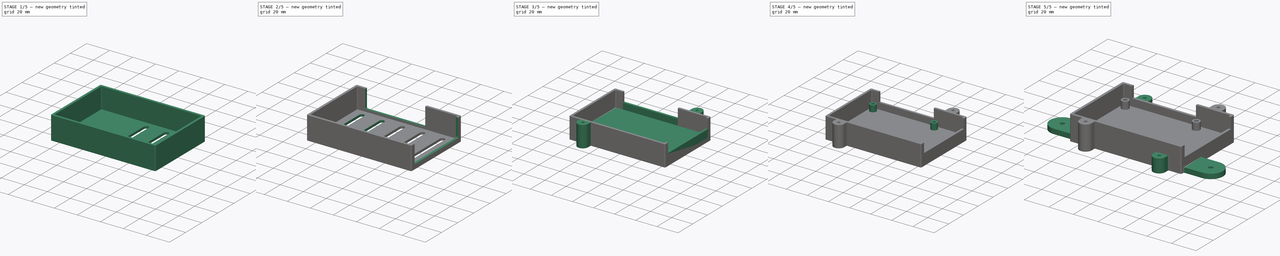
[diagram: build sequence overview — one tinted view per stage of 5, left to right]
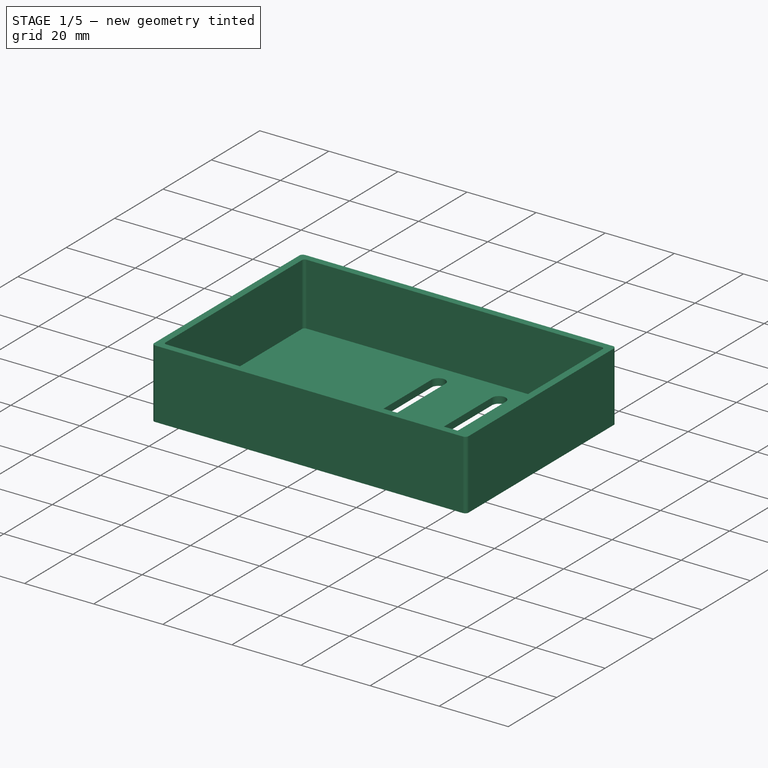
[diagram: stage 1 of 5 — iso view after this stage's code; geometry added in this stage tinted green]
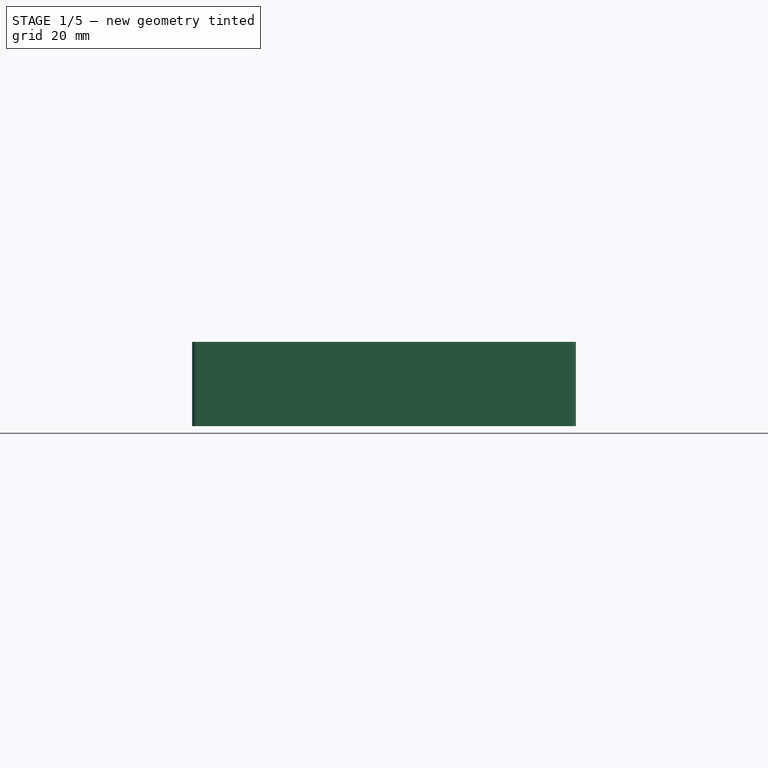
[diagram: stage 1 of 5 — front view after this stage's code; geometry added in this stage tinted green]
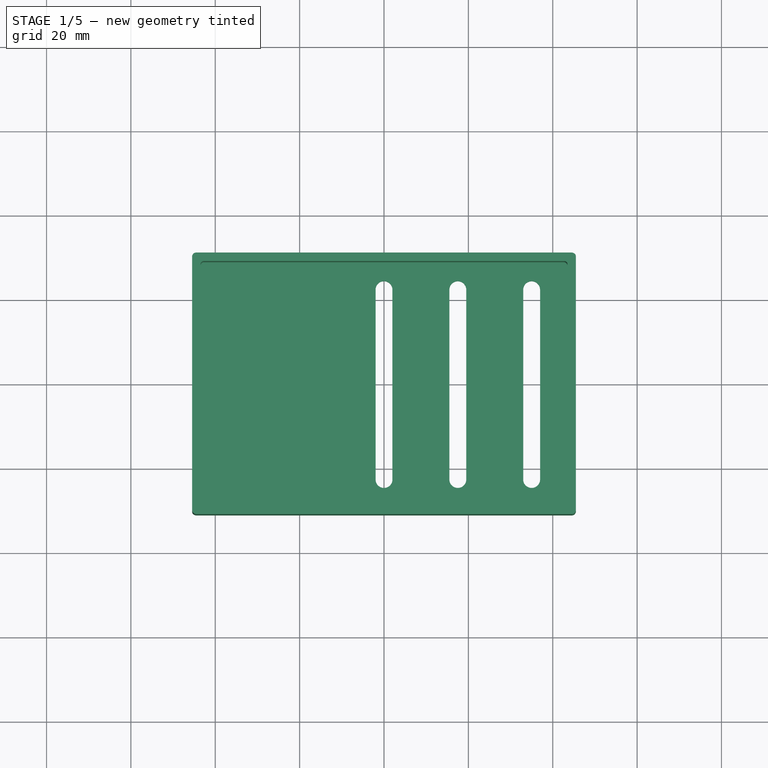
[diagram: stage 1 of 5 — top view after this stage's code; geometry added in this stage tinted green]
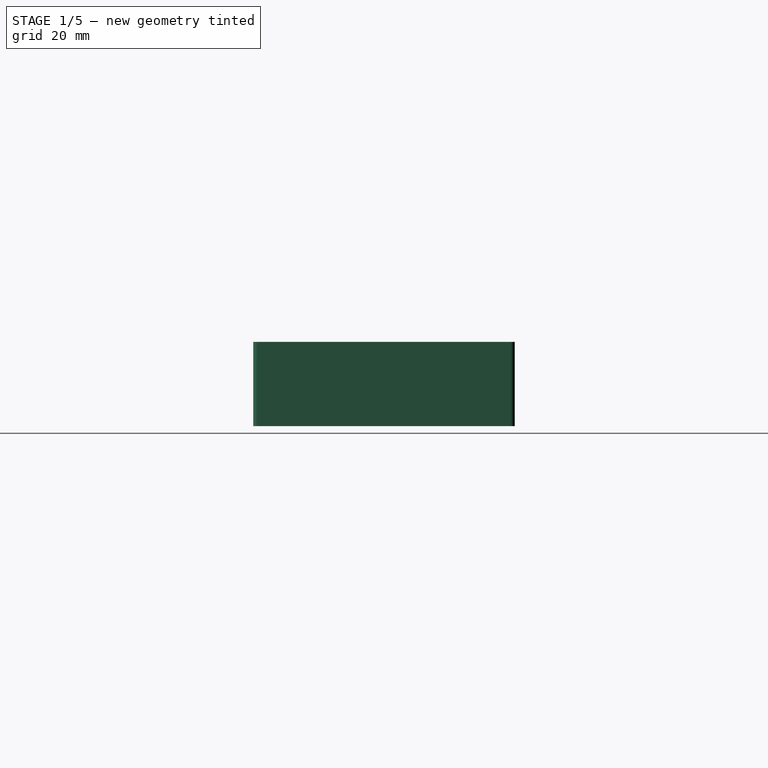
[diagram: stage 1 of 5 — right view after this stage's code; geometry added in this stage tinted green]
FCSTD DOCUMENT  (FreeCAD 0.19R22756 (Git))
Label: rpi-3b-holder
License: All rights reserved
LicenseURL: http://en.wikipedia.org/wiki/All_rights_reserved
objects: Sketcher::SketchObject×16, PartDesign::Pocket×10, PartDesign::Fillet×9, PartDesign::Pad×6, PartDesign::Body×2, PartDesign::LinearPattern×2, PartDesign::Mirrored×1
note: 71 computed .brp shape members not serialized (recipe doc carries the construction recipe); baked Part::Feature solids carry a one-line shape summary decoded from their .brp

FEATURE [PartDesign::Body] Body  label="Bottom"
  Group = -> [Sketch,Pad,Sketch001,Pocket,Fillet,Fillet001,Sketch002,Pad001,Sketch003,Pocket001,Sketch004,Pocket002,Sketch005,Pocket003,Fillet002,Sketch006,Pad002,Mirrored,Fillet003,Sketch007,Pad003,Fillet004,Sketch008,Pocket004]
  Origin = -> Origin
  Tip = -> Pocket004
FEATURE [Sketcher::SketchObject] Sketch009
  MapMode = 5
  Support = -> [XY_Plane001]
  expr: Constraints[11] = Constraints[9] / 2
  expr: Constraints[10] = Constraints[8] / 2
  sketch-geometry (4):
    g0: LineSegment StartX=-45.5 StartY=-31 StartZ=0 EndX=45.5 EndY=-31 EndZ=0
    g1: LineSegment StartX=45.5 StartY=-31 StartZ=0 EndX=45.5 EndY=31 EndZ=0
    g2: LineSegment StartX=45.5 StartY=31 StartZ=0 EndX=-45.5 EndY=31 EndZ=0
    g3: LineSegment StartX=-45.5 StartY=31 StartZ=0 EndX=-45.5 EndY=-31 EndZ=0
  constraints (12):
    c: Coincident(g0,g1)
    c: Coincident(g1,g2)
    c: Coincident(g2,g3)
    c: Coincident(g3,g0)
    c: Horizontal(g0)
    c: Horizontal(g2)
    c: Vertical(g1)
    c: Vertical(g3)
    c: Distance(g2) = 91
    c: Distance(g1) = 62
    c: Distance(g2,g-2) = 45.5
    c: Distance(g1,g-1) = 31
FEATURE [PartDesign::Pad] Pad004
  Direction = (1,1,1)
  Length = 20
  Length2 = 100
  Profile = -> Sketch009
  Type = 0
FEATURE [Sketcher::SketchObject] Sketch010
  ExternalGeometry = -> [Pad004]
  MapMode = 5
  Placement = pos=(0,0,20) rot=(0,0,1;0rad)
  Support = -> [Pad004]
  expr: Constraints[11] = Constraints[8]
  expr: Constraints[10] = Constraints[8]
  expr: Constraints[9] = Constraints[8]
  sketch-geometry (4):
    g0: LineSegment StartX=-43.5 StartY=-29 StartZ=0 EndX=43.5 EndY=-29 EndZ=0
    g1: LineSegment StartX=43.5 StartY=-29 StartZ=0 EndX=43.5 EndY=29 EndZ=0
    g2: LineSegment StartX=43.5 StartY=29 StartZ=0 EndX=-43.5 EndY=29 EndZ=0
    g3: LineSegment StartX=-43.5 StartY=29 StartZ=0 EndX=-43.5 EndY=-29 EndZ=0
  constraints (12):
    c: Coincident(g0,g1)
    c: Coincident(g1,g2)
    c: Coincident(g2,g3)
    c: Coincident(g3,g0)
    c: Horizontal(g0)
    c: Horizontal(g2)
    c: Vertical(g1)
    c: Vertical(g3)
    c: Distance(g2,g-3) = 2
    c: Distance(g0,g-4) = 2
    c: Distance(g0,g-5) = 2
    c: Distance(g0,g-6) = 2
FEATURE [PartDesign::Pocket] Pocket005
  BaseFeature = -> Pad004
  Length = 0
  Length2 = 100
  Offset = -2
  Profile = -> Sketch010
  Type = 3
  UpToFace = -> Pad004 [Face5]
FEATURE [PartDesign::Fillet] Fillet005
  Base = -> Pocket005 [Edge1,Edge5,Edge8,Edge2]
  BaseFeature = -> Pocket005
  Radius = 1
  SupportTransform = false
FEATURE [PartDesign::Fillet] Fillet006
  Base = -> Fillet005 [Edge34,Edge31,Edge29,Edge32]
  BaseFeature = -> Fillet005
  Radius = 0.8
  SupportTransform = false
FEATURE [Sketcher::SketchObject] Sketch011
  MapMode = 5
  Placement = pos=(0,0,2) rot=(0,0,1;0rad)
  Support = -> [Fillet006]
  expr: Constraints[10] = Constraints[9] / 2
  sketch-geometry (4):
    g0: LineSegment StartX=-2 StartY=22.5 StartZ=0 EndX=-2 EndY=-22.5 EndZ=0
    g1: LineSegment StartX=2 StartY=22.5 StartZ=0 EndX=2 EndY=-22.5 EndZ=0
    g2: ArcOfCircle CenterX=0 CenterY=22.5 CenterZ=0 NormalX=0 NormalY=0 NormalZ=1 AngleXU=0 Radius=2 StartAngle=-2.967e-13 EndAngle=3.14159
    g3: ArcOfCircle CenterX=2e-16 CenterY=-22.5 CenterZ=0 NormalX=0 NormalY=0 NormalZ=1 AngleXU=0 Radius=2 StartAngle=3.14159 EndAngle=6.28319
  constraints (12):
    c: Vertical(g0)
    c: Vertical(g1)
    c: Horizontal(g0,g1)
    c: Horizontal(g0,g1)
    c: Coincident(g2,g1)
    c: Coincident(g3,g1)
    c: Tangent(g2,g0) = -1.5708
    c: Tangent(g3,g0) = -1.5708
    c: PointOnObject(g2,g-2)
    c: Distance(g1) = 45
    c: DistanceY(g-1,g1) = 22.5
    c: Radius(g2) = 2
FEATURE [PartDesign::Pocket] Pocket006
  BaseFeature = -> Fillet006
  Length = 5
  Length2 = 100
  Profile = -> Sketch011
  Type = 1
FEATURE [PartDesign::LinearPattern] LinearPattern
  BaseFeature = -> Pocket006
  Direction = -> Sketch011 [H_Axis]
  Length = 35
  Occurrences = 3
  Originals = -> [Pocket006]
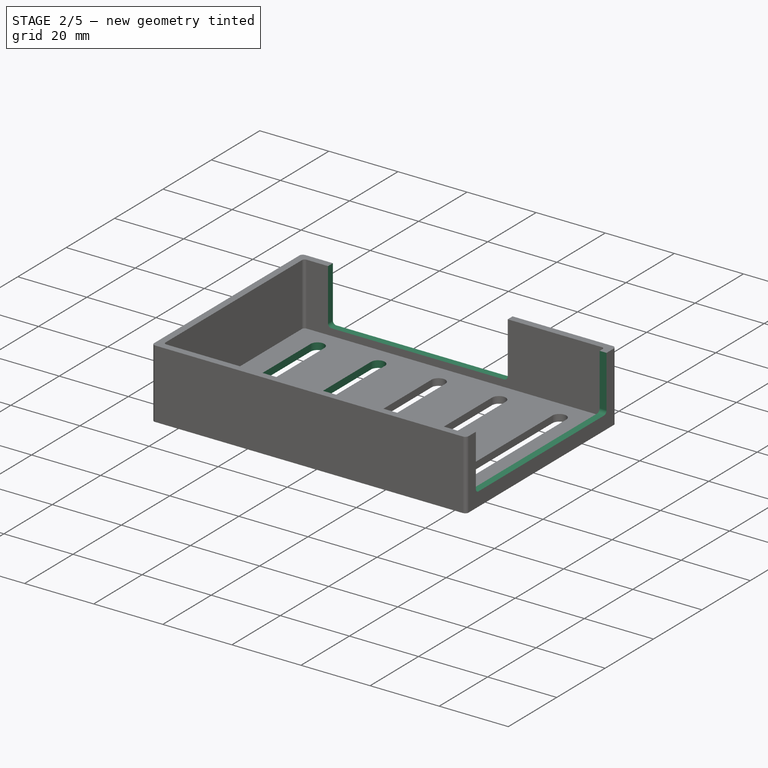
[diagram: stage 2 of 5 — iso view after this stage's code; geometry added in this stage tinted green]
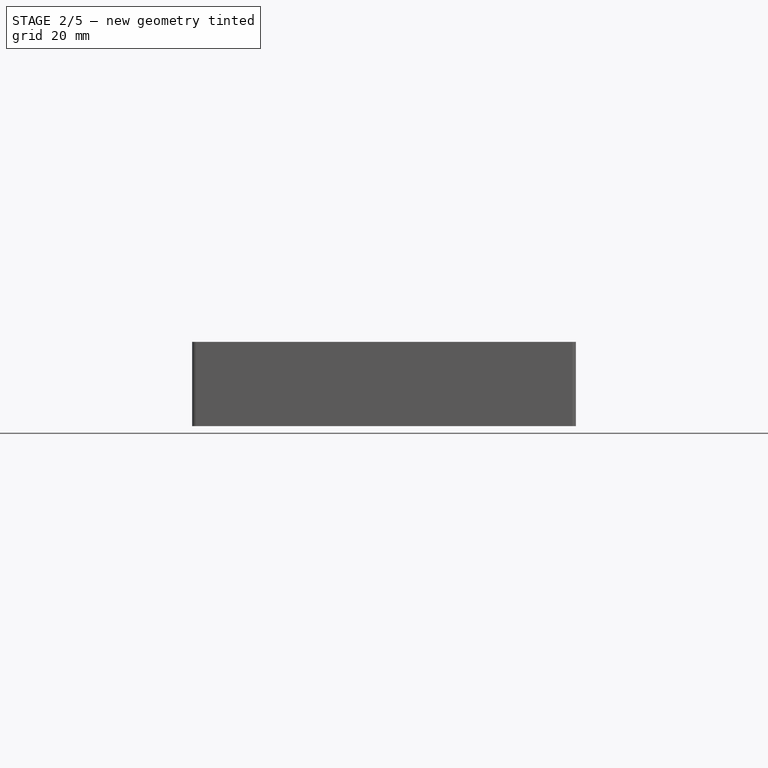
[diagram: stage 2 of 5 — front view after this stage's code; geometry added in this stage tinted green]
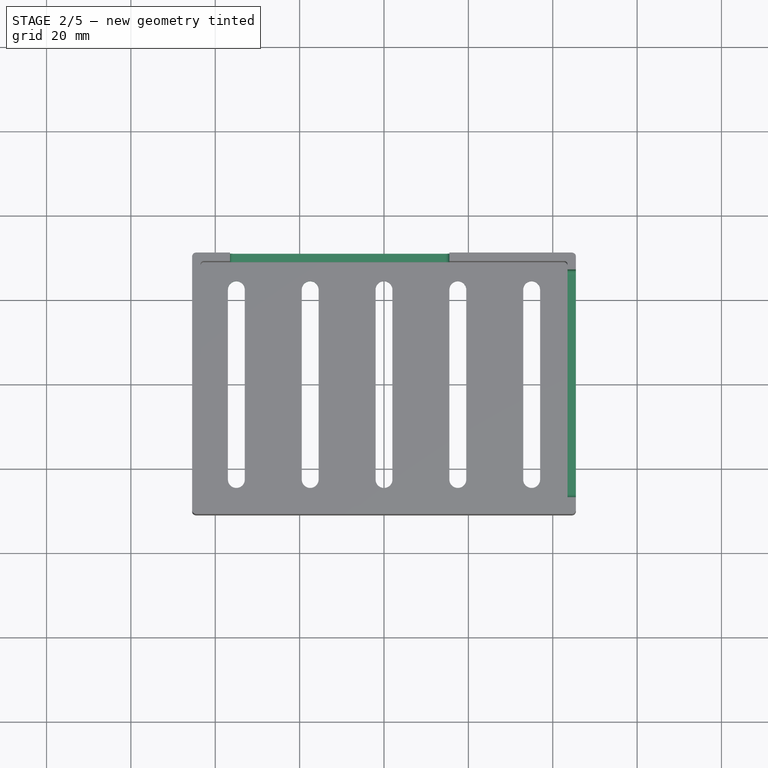
[diagram: stage 2 of 5 — top view after this stage's code; geometry added in this stage tinted green]
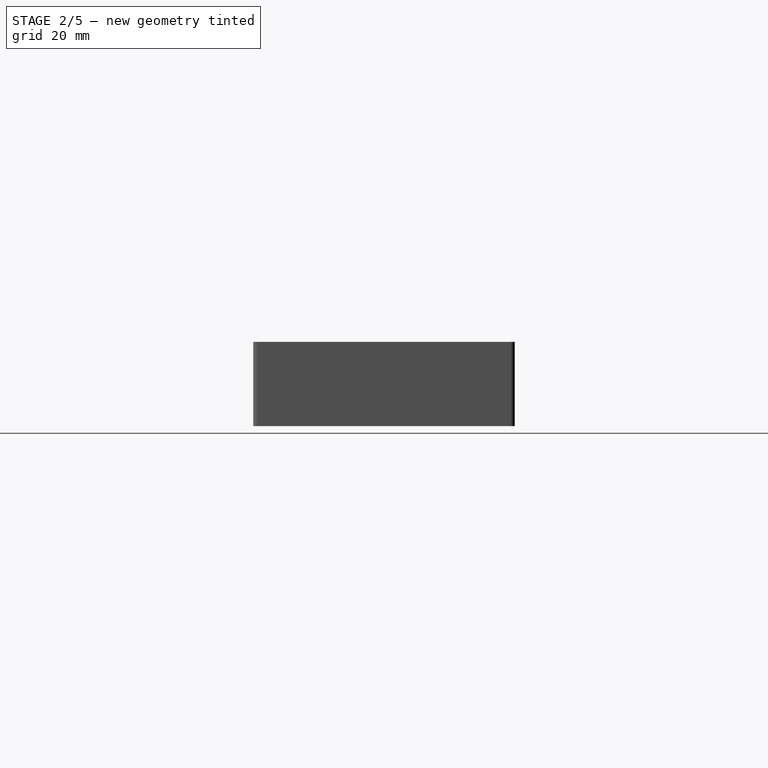
[diagram: stage 2 of 5 — right view after this stage's code; geometry added in this stage tinted green]
FEATURE [PartDesign::LinearPattern] LinearPattern001
  BaseFeature = -> LinearPattern
  Direction = -> Sketch011 [H_Axis]
  Length = 35
  Occurrences = 3
  Originals = -> [Pocket006]
  Reversed = true
FEATURE [Sketcher::SketchObject] Sketch012
  ExternalGeometry = -> [LinearPattern001]
  MapMode = 5
  Placement = pos=(0,0,20) rot=(0,0,1;0rad)
  Support = -> [LinearPattern001]
  expr: Constraints[11] = Constraints[10] / 2
  sketch-geometry (4):
    g0: LineSegment StartX=43.5 StartY=-27 StartZ=0 EndX=45.5 EndY=-27 EndZ=0
    g1: LineSegment StartX=45.5 StartY=-27 StartZ=0 EndX=45.5 EndY=27 EndZ=0
    g2: LineSegment StartX=45.5 StartY=27 StartZ=0 EndX=43.5 EndY=27 EndZ=0
    g3: LineSegment StartX=43.5 StartY=27 StartZ=0 EndX=43.5 EndY=-27 EndZ=0
  constraints (12):
    c: Coincident(g0,g1)
    c: Coincident(g1,g2)
    c: Coincident(g2,g3)
    c: Coincident(g3,g0)
    c: Horizontal(g0)
    c: Horizontal(g2)
    c: Vertical(g1)
    c: Vertical(g3)
    c: PointOnObject(g0,g-3)
    c: PointOnObject(g1,g-4)
    c: Distance(g1) = 54
    c: DistanceY(g-1,g1) = 27
FEATURE [PartDesign::Pocket] Pocket007
  BaseFeature = -> LinearPattern001
  Length = 16
  Length2 = 100
  Profile = -> Sketch012
  Type = 0
FEATURE [PartDesign::Fillet] Fillet007
  Base = -> Pocket007 [Edge32,Edge51]
  BaseFeature = -> Pocket007
  Radius = 1
  SupportTransform = false
FEATURE [Sketcher::SketchObject] Sketch013
  ExternalGeometry = -> [Fillet007]
  MapMode = 5
  Placement = pos=(0,0,20) rot=(0,0,1;0rad)
  Support = -> [Fillet007]
  sketch-geometry (4):
    g0: LineSegment StartX=-36.5 StartY=29 StartZ=0 EndX=15.5 EndY=29 EndZ=0
    g1: LineSegment StartX=15.5 StartY=29 StartZ=0 EndX=15.5 EndY=31 EndZ=0
    g2: LineSegment StartX=15.5 StartY=31 StartZ=0 EndX=-36.5 EndY=31 EndZ=0
    g3: LineSegment StartX=-36.5 StartY=31 StartZ=0 EndX=-36.5 EndY=29 EndZ=0
  constraints (12):
    c: Coincident(g0,g1)
    c: Coincident(g1,g2)
    c: Coincident(g2,g3)
    c: Coincident(g3,g0)
    c: Horizontal(g0)
    c: Horizontal(g2)
    c: Vertical(g1)
    c: Vertical(g3)
    c: PointOnObject(g0,g-3)
    c: PointOnObject(g1,g-4)
    c: Distance(g0,g-5) = 9
    c: Distance(g2) = 52
FEATURE [PartDesign::Pocket] Pocket008
  BaseFeature = -> Fillet007
  Length = 16
  Length2 = 100
  Profile = -> Sketch013
  Type = 0
FEATURE [PartDesign::Fillet] Fillet008
  Base = -> Pocket008 [Edge91,Edge137]
  BaseFeature = -> Pocket008
  Radius = 1
  SupportTransform = false
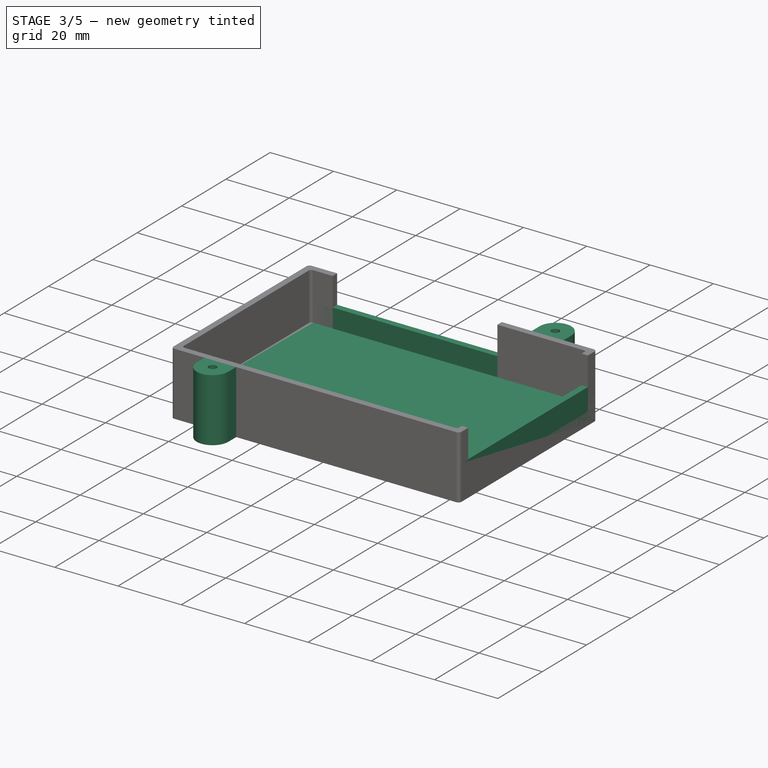
[diagram: stage 3 of 5 — iso view after this stage's code; geometry added in this stage tinted green]
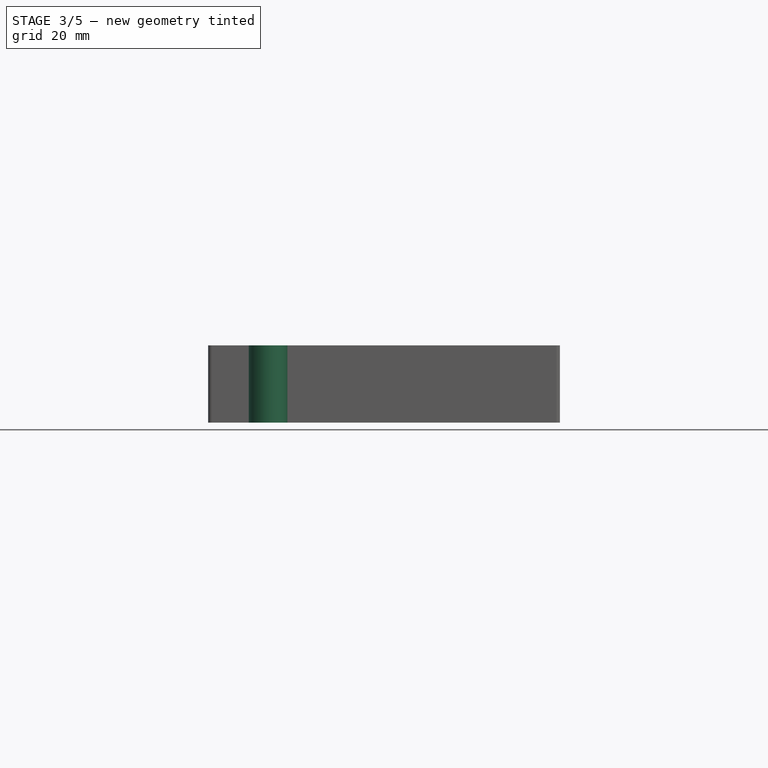
[diagram: stage 3 of 5 — front view after this stage's code; geometry added in this stage tinted green]
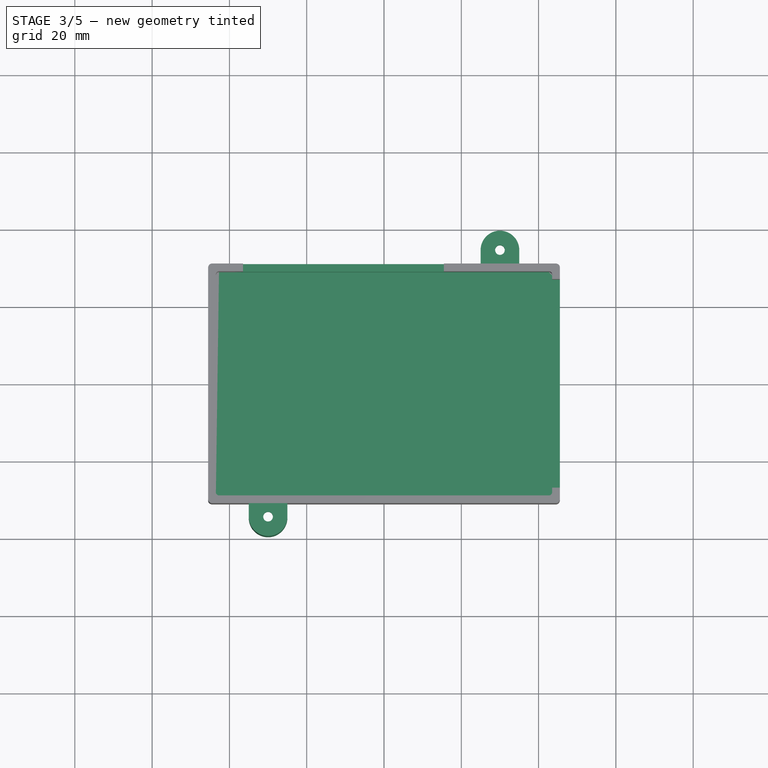
[diagram: stage 3 of 5 — top view after this stage's code; geometry added in this stage tinted green]
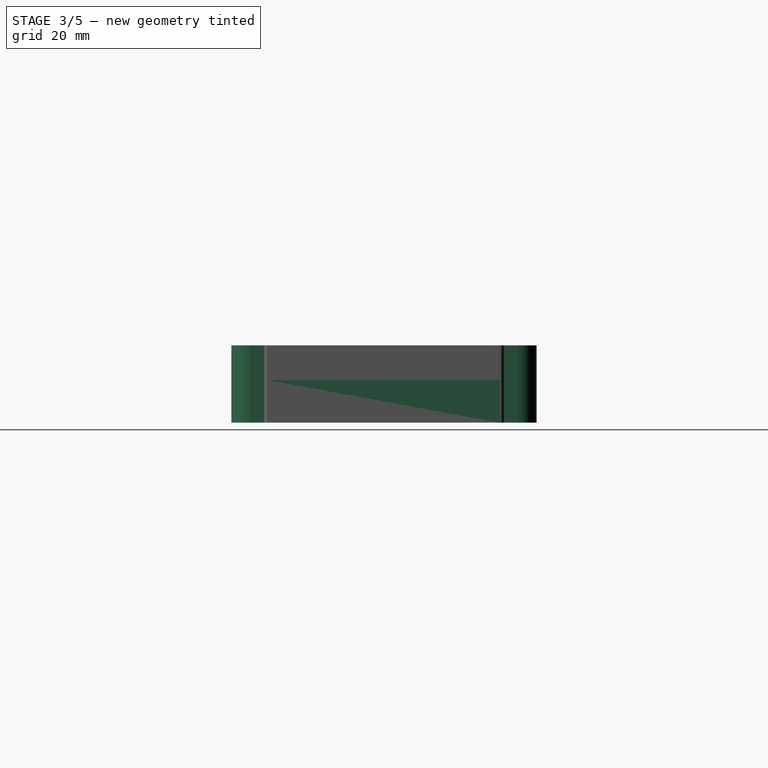
[diagram: stage 3 of 5 — right view after this stage's code; geometry added in this stage tinted green]
FEATURE [Sketcher::SketchObject] Sketch
  MapMode = 5
  Support = -> [XY_Plane]
  expr: Constraints[10] = Constraints[8] / 2
  expr: Constraints[11] = Constraints[9] / 2
  sketch-geometry (4):
    g0: LineSegment StartX=-45.5 StartY=-31 StartZ=0 EndX=45.5 EndY=-31 EndZ=0
    g1: LineSegment StartX=45.5 StartY=-31 StartZ=0 EndX=45.5 EndY=31 EndZ=0
    g2: LineSegment StartX=45.5 StartY=31 StartZ=0 EndX=-45.5 EndY=31 EndZ=0
    g3: LineSegment StartX=-45.5 StartY=31 StartZ=0 EndX=-45.5 EndY=-31 EndZ=0
  constraints (12):
    c: Coincident(g0,g1)
    c: Coincident(g1,g2)
    c: Coincident(g2,g3)
    c: Coincident(g3,g0)
    c: Horizontal(g0)
    c: Horizontal(g2)
    c: Vertical(g1)
    c: Vertical(g3)
    c: Distance(g2) = 91
    c: Distance(g1) = 62
    c: Distance(g2,g-2) = 45.5
    c: Distance(g1,g-1) = 31
FEATURE [PartDesign::Pad] Pad
  Direction = (1,1,1)
  Length = 11
  Length2 = 100
  Profile = -> Sketch
  Type = 0
FEATURE [Sketcher::SketchObject] Sketch001
  ExternalGeometry = -> [Pad]
  MapMode = 5
  Placement = pos=(0,0,11) rot=(0,0,1;0rad)
  Support = -> [Pad]
  expr: Constraints[9] = Constraints[8]
  expr: Constraints[10] = Constraints[8]
  expr: Constraints[11] = Constraints[8]
  sketch-geometry (4):
    g0: LineSegment StartX=-43.5 StartY=-29 StartZ=0 EndX=43.5 EndY=-29 EndZ=0
    g1: LineSegment StartX=43.5 StartY=-29 StartZ=0 EndX=43.5 EndY=29 EndZ=0
    g2: LineSegment StartX=43.5 StartY=29 StartZ=0 EndX=-43.5 EndY=29 EndZ=0
    g3: LineSegment StartX=-43.5 StartY=29 StartZ=0 EndX=-43.5 EndY=-29 EndZ=0
  constraints (12):
    c: Coincident(g0,g1)
    c: Coincident(g1,g2)
    c: Coincident(g2,g3)
    c: Coincident(g3,g0)
    c: Horizontal(g0)
    c: Horizontal(g2)
    c: Vertical(g1)
    c: Vertical(g3)
    c: Distance(g2,g-3) = 2
    c: Distance(g0,g-6) = 2
    c: Distance(g0,g-5) = 2
    c: Distance(g1,g-4) = 2
FEATURE [PartDesign::Pocket] Pocket
  BaseFeature = -> Pad
  Length = 0
  Length2 = 100
  Offset = -5
  Profile = -> Sketch001
  Type = 3
  UpToFace = -> Pad [Face5]
FEATURE [PartDesign::Fillet] Fillet
  Base = -> Pocket [Edge5,Edge1,Edge2,Edge8]
  BaseFeature = -> Pocket
  Radius = 1
  SupportTransform = false
FEATURE [PartDesign::Fillet] Fillet001
  Base = -> Fillet [Edge34,Edge31,Edge32,Edge29]
  BaseFeature = -> Fillet
  Radius = 0.8
  SupportTransform = false
FEATURE [Sketcher::SketchObject] Sketch014
  ExternalGeometry = -> [Fillet008]
  MapMode = 5
  Placement = pos=(0,0,20) rot=(0,0,1;0rad)
  Support = -> [Fillet008]
  expr: Constraints[27] = Constraints[13]
  expr: Constraints[26] = -Constraints[12]
  expr: Constraints[25] = Constraints[11]
  expr: Constraints[24] = Constraints[10]
  sketch-geometry (10):
    g0: LineSegment StartX=-35 StartY=-31 StartZ=0 EndX=-35 EndY=-34.5 EndZ=0
    g1: LineSegment StartX=-25 StartY=-31 StartZ=0 EndX=-25 EndY=-34.5 EndZ=0
    g2: LineSegment StartX=-35 StartY=-31 StartZ=0 EndX=-25 EndY=-31 EndZ=0
    g3: ArcOfCircle CenterX=-30 CenterY=-34.5 CenterZ=0 NormalX=0 NormalY=0 NormalZ=1 AngleXU=0 Radius=5 StartAngle=3.14159 EndAngle=6.28319
    g4: Circle CenterX=-30 CenterY=-34.5 CenterZ=0 NormalX=0 NormalY=0 NormalZ=1 AngleXU=0 Radius=1.25
    g5: LineSegment StartX=25 StartY=31 StartZ=0 EndX=25 EndY=34.5 EndZ=0
    g6: LineSegment StartX=35 StartY=31 StartZ=0 EndX=35 EndY=34.5 EndZ=0
    g7: ArcOfCircle CenterX=30 CenterY=34.5 CenterZ=0 NormalX=0 NormalY=0 NormalZ=1 AngleXU=0 Radius=5 StartAngle=-9e-16 EndAngle=3.14159
    g8: LineSegment StartX=25 StartY=31 StartZ=0 EndX=35 EndY=31 EndZ=0
    g9: Circle CenterX=30 CenterY=34.5 CenterZ=0 NormalX=0 NormalY=0 NormalZ=1 AngleXU=0 Radius=1.25
  constraints (28):
    c: PointOnObject(g0,g-3)
    c: Vertical(g0)
    c: PointOnObject(g1,g-3)
    c: Vertical(g1)
    c: Coincident(g2,g0)
    c: Coincident(g2,g1)
    c: Horizontal(g0,g1)
    c: Coincident(g3,g0)
    c: Tangent(g3,g1) = 1.5708
    c: Coincident(g4,g3)
    c: Diameter(g4) = 2.5
    c: Radius(g3) = 5
    c: DistanceX(g-2,g3) = -30
    c: Distance(g3,g2) = 3.5
    c: PointOnObject(g5,g-5)
    c: Vertical(g5)
    c: PointOnObject(g6,g-5)
    c: Vertical(g6)
    c: Coincident(g7,g6)
    c: Coincident(g8,g5)
    c: Coincident(g8,g6)
    c: Coincident(g9,g7)
    c: Horizontal(g5,g6)
    c: Tangent(g7,g5) = 1.5708
    c: Diameter(g9) = 2.5
    c: Radius(g7) = 5
    c: DistanceX(g-2,g7) = 30
    c: Distance(g7,g8) = 3.5
FEATURE [PartDesign::Pad] Pad005
  BaseFeature = -> Fillet008
  Direction = (1,1,1)
  Length = 10
  Length2 = 100
  Profile = -> Sketch014
  Reversed = true
  Type = 3
  UpToFace = -> Fillet008 [Face8]
FEATURE [Sketcher::SketchObject] Sketch015
  ExternalGeometry = -> [Pad005]
  MapMode = 5
  Placement = pos=(0,0,0) rot=(1,0,0;3.14159rad)
  Support = -> [Pad005]
  expr: Constraints[3] = Constraints[1]
  sketch-geometry (2):
    g0: Circle CenterX=-30 CenterY=34.5 CenterZ=0 NormalX=0 NormalY=0 NormalZ=1 AngleXU=0 Radius=2.5
    g1: Circle CenterX=30 CenterY=-34.5 CenterZ=0 NormalX=0 NormalY=0 NormalZ=1 AngleXU=0 Radius=2.5
  constraints (4):
    c: Coincident(g0,g-3)
    c: Diameter(g0) = 5
    c: Coincident(g1,g-4)
    c: Diameter(g1) = 5
FEATURE [PartDesign::Pocket] Pocket009
  BaseFeature = -> Pad005
  Length = 0
  Length2 = 100
  Offset = -4
  Profile = -> Sketch015
  Type = 3
  UpToFace = -> Pad005 [Face14]
FEATURE [PartDesign::Body] Body001  label="Top"
  Group = -> [Sketch009,Pad004,Sketch010,Pocket005,Fillet005,Fillet006,Sketch011,Pocket006,LinearPattern,LinearPattern001,Sketch012,Pocket007,Fillet007,Sketch013,Pocket008,Fillet008,Sketch014,Pad005,Sketch015,Pocket009]
  Origin = -> Origin001
  Tip = -> Pocket009
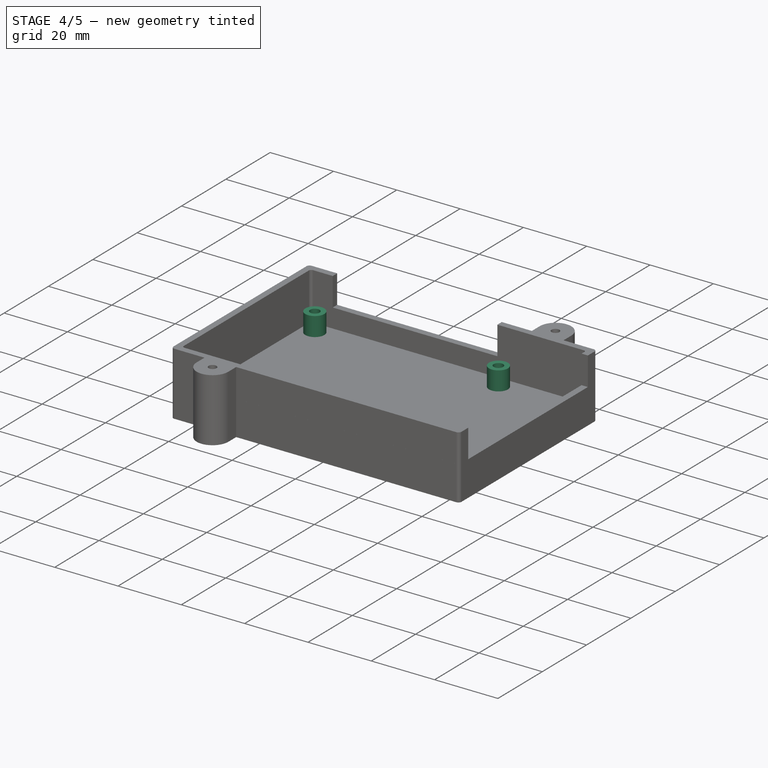
[diagram: stage 4 of 5 — iso view after this stage's code; geometry added in this stage tinted green]
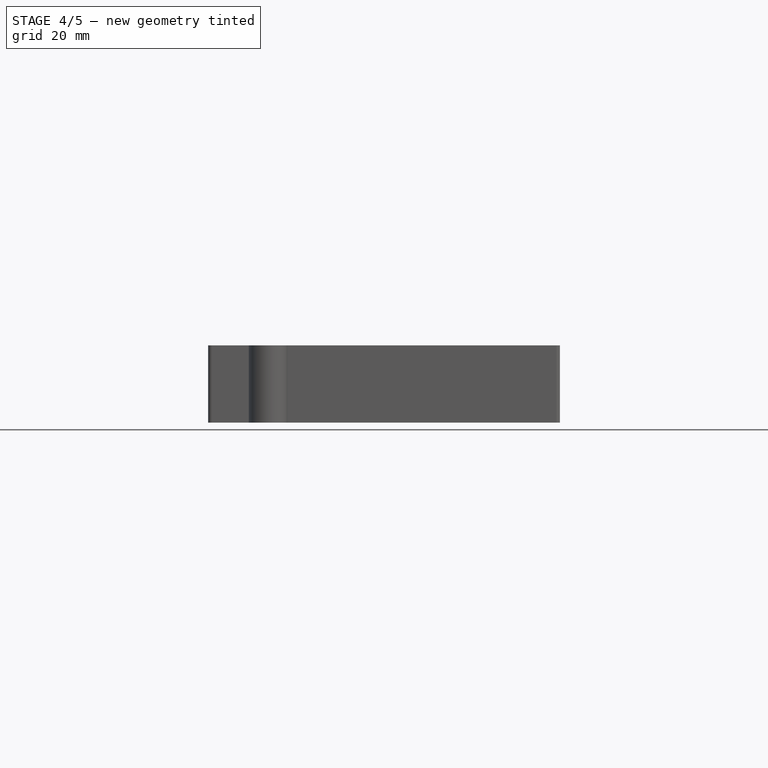
[diagram: stage 4 of 5 — front view after this stage's code; geometry added in this stage tinted green]
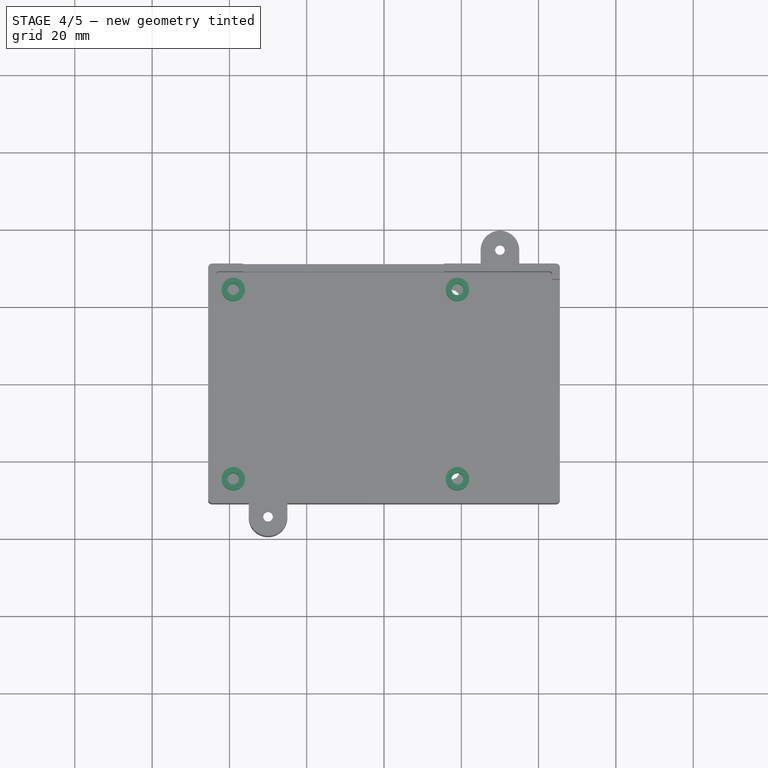
[diagram: stage 4 of 5 — top view after this stage's code; geometry added in this stage tinted green]
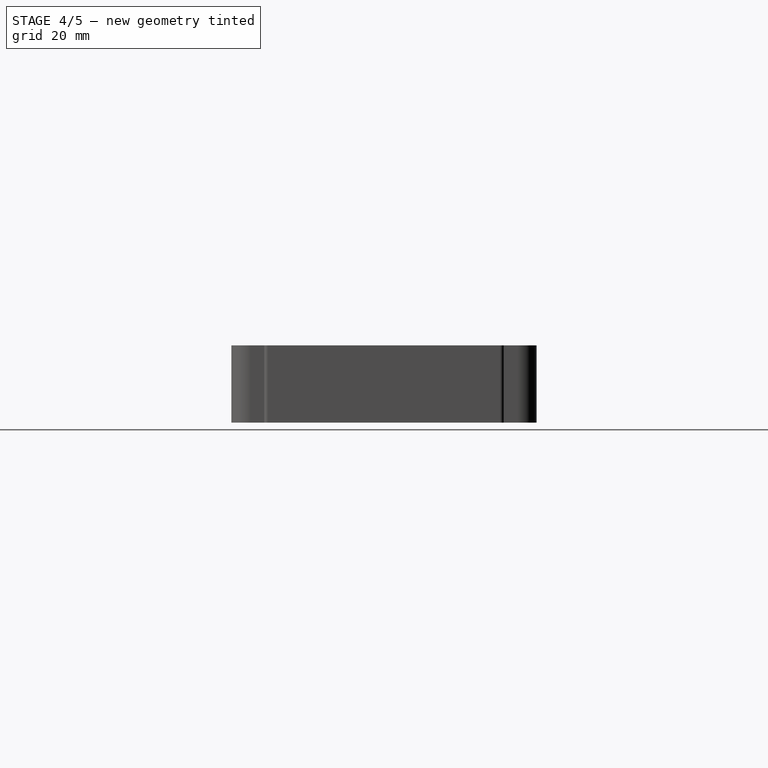
[diagram: stage 4 of 5 — right view after this stage's code; geometry added in this stage tinted green]
FEATURE [Sketcher::SketchObject] Sketch002
  ExternalGeometry = -> [Fillet001]
  MapMode = 5
  Placement = pos=(0,0,5) rot=(0,0,1;0rad)
  Support = -> [Fillet001]
  expr: Constraints[5] = Constraints[0]
  expr: Constraints[7] = Constraints[0]
  expr: Constraints[9] = Constraints[0]
  sketch-geometry (4):
    g0: Circle CenterX=-39 CenterY=24.5 CenterZ=0 NormalX=0 NormalY=0 NormalZ=1 AngleXU=0 Radius=3
    g1: Circle CenterX=19 CenterY=24.5 CenterZ=0 NormalX=0 NormalY=0 NormalZ=1 AngleXU=0 Radius=3
    g2: Circle CenterX=-39 CenterY=-24.5 CenterZ=0 NormalX=0 NormalY=0 NormalZ=1 AngleXU=0 Radius=3
    g3: Circle CenterX=19 CenterY=-24.5 CenterZ=0 NormalX=0 NormalY=0 NormalZ=1 AngleXU=0 Radius=3
  constraints (12):
    c: Diameter(g0) = 6
    c: Distance(g0,g-3) = 4.5
    c: Distance(g0,g-4) = 4.5
    c: Horizontal(g0,g1)
    c: DistanceX(g0,g1) = 58
    c: Diameter(g1) = 6
    c: Vertical(g2,g0)
    c: Diameter(g2) = 6
    c: DistanceY(g2,g0) = 49
    c: Diameter(g3) = 6
    c: Horizontal(g3,g2)
    c: Vertical(g3,g1)
FEATURE [PartDesign::Pad] Pad001
  BaseFeature = -> Fillet001
  Direction = (1,1,1)
  Length = 10
  Length2 = 100
  Profile = -> Sketch002
  Type = 3
  UpToFace = -> Fillet001 [Face1]
FEATURE [Sketcher::SketchObject] Sketch003
  ExternalGeometry = -> [Pad001]
  MapMode = 5
  Placement = pos=(0,0,11) rot=(0,0,1;0rad)
  Support = -> [Pad001]
  expr: Constraints[5] = Constraints[4]
  expr: Constraints[6] = Constraints[4]
  expr: Constraints[7] = Constraints[4]
  sketch-geometry (4):
    g0: Circle CenterX=-39 CenterY=24.5 CenterZ=0 NormalX=0 NormalY=0 NormalZ=1 AngleXU=0 Radius=1.5
    g1: Circle CenterX=19 CenterY=24.5 CenterZ=0 NormalX=0 NormalY=0 NormalZ=1 AngleXU=0 Radius=1.5
    g2: Circle CenterX=-39 CenterY=-24.5 CenterZ=0 NormalX=0 NormalY=0 NormalZ=1 AngleXU=0 Radius=1.5
    g3: Circle CenterX=19 CenterY=-24.5 CenterZ=0 NormalX=0 NormalY=0 NormalZ=1 AngleXU=0 Radius=1.5
  constraints (8):
    c: Coincident(g0,g-3)
    c: Coincident(g1,g-5)
    c: Coincident(g2,g-4)
    c: Coincident(g3,g-6)
    c: Diameter(g0) = 3
    c: Diameter(g1) = 3
    c: Diameter(g2) = 3
    c: Diameter(g3) = 3
FEATURE [PartDesign::Pocket] Pocket001
  BaseFeature = -> Pad001
  Length = 5
  Length2 = 100
  Profile = -> Sketch003
  Type = 1
FEATURE [Sketcher::SketchObject] Sketch004
  ExternalGeometry = -> [Pocket001]
  MapMode = 5
  Placement = pos=(0,0,0) rot=(1,0,0;3.14159rad)
  Support = -> [Pocket001]
  expr: Constraints[75] = Constraints[73]
  expr: Constraints[77] = Constraints[73]
  expr: Constraints[79] = Constraints[73]
  sketch-geometry (28):
    g0: LineSegment StartX=-37.4989 StartY=27.1 StartZ=0 EndX=-40.5011 EndY=27.1 EndZ=0
    g1: LineSegment StartX=-40.5011 StartY=27.1 StartZ=0 EndX=-42.0022 EndY=24.5 EndZ=0
    g2: LineSegment StartX=-42.0022 StartY=24.5 StartZ=0 EndX=-40.5011 EndY=21.9 EndZ=0
    g3: LineSegment StartX=-40.5011 StartY=21.9 StartZ=0 EndX=-37.4989 EndY=21.9 EndZ=0
    g4: LineSegment StartX=-37.4989 StartY=21.9 StartZ=0 EndX=-35.9978 EndY=24.5 EndZ=0
    g5: LineSegment StartX=-35.9978 StartY=24.5 StartZ=0 EndX=-37.4989 EndY=27.1 EndZ=0
    g6: Circle [constr] CenterX=-39 CenterY=24.5 CenterZ=0 NormalX=0 NormalY=0 NormalZ=1 AngleXU=0 Radius=3.00222
    g7: LineSegment StartX=22.0022 StartY=24.5 StartZ=0 EndX=20.5011 EndY=27.1 EndZ=0
    g8: LineSegment StartX=20.5011 StartY=27.1 StartZ=0 EndX=17.4989 EndY=27.1 EndZ=0
    g9: LineSegment StartX=17.4989 StartY=27.1 StartZ=0 EndX=15.9978 EndY=24.5 EndZ=0
    g10: LineSegment StartX=15.9978 StartY=24.5 StartZ=0 EndX=17.4989 EndY=21.9 EndZ=0
    g11: LineSegment StartX=17.4989 StartY=21.9 StartZ=0 EndX=20.5011 EndY=21.9 EndZ=0
    g12: LineSegment StartX=20.5011 StartY=21.9 StartZ=0 EndX=22.0022 EndY=24.5 EndZ=0
    g13: Circle [constr] CenterX=19 CenterY=24.5 CenterZ=0 NormalX=0 NormalY=0 NormalZ=1 AngleXU=0 Radius=3.00222
    g14: LineSegment StartX=-35.9978 StartY=-24.5 StartZ=0 EndX=-37.4989 EndY=-21.9 EndZ=0
    g15: LineSegment StartX=-37.4989 StartY=-21.9 StartZ=0 EndX=-40.5011 EndY=-21.9 EndZ=0
    g16: LineSegment StartX=-40.5011 StartY=-21.9 StartZ=0 EndX=-42.0022 EndY=-24.5 EndZ=0
    g17: LineSegment StartX=-42.0022 StartY=-24.5 StartZ=0 EndX=-40.5011 EndY=-27.1 EndZ=0
    g18: LineSegment StartX=-40.5011 StartY=-27.1 StartZ=0 EndX=-37.4989 EndY=-27.1 EndZ=0
    g19: LineSegment StartX=-37.4989 StartY=-27.1 StartZ=0 EndX=-35.9978 EndY=-24.5 EndZ=0
    g20: Circle [constr] CenterX=-39 CenterY=-24.5 CenterZ=0 NormalX=0 NormalY=0 NormalZ=1 AngleXU=0 Radius=3.00222
    g21: LineSegment StartX=20.5011 StartY=-21.9 StartZ=0 EndX=17.4989 EndY=-21.9 EndZ=0
    g22: LineSegment StartX=17.4989 StartY=-21.9 StartZ=0 EndX=15.9978 EndY=-24.5 EndZ=0
    g23: LineSegment StartX=15.9978 StartY=-24.5 StartZ=0 EndX=17.4989 EndY=-27.1 EndZ=0
    g24: LineSegment StartX=17.4989 StartY=-27.1 StartZ=0 EndX=20.5011 EndY=-27.1 EndZ=0
    g25: LineSegment StartX=20.5011 StartY=-27.1 StartZ=0 EndX=22.0022 EndY=-24.5 EndZ=0
    g26: LineSegment StartX=22.0022 StartY=-24.5 StartZ=0 EndX=20.5011 EndY=-21.9 EndZ=0
    g27: Circle [constr] CenterX=19 CenterY=-24.5 CenterZ=0 NormalX=0 NormalY=0 NormalZ=1 AngleXU=0 Radius=3.00222
  constraints (64):
    c: Coincident(g0,g1)
    c: Coincident(g1,g2)
    c: Coincident(g2,g3)
    c: Coincident(g3,g4)
    c: Coincident(g4,g5)
    c: Coincident(g5,g0)
    c: Equal(g0, g1-g5) x5
    c: PointOnObject(g0,g6)
    c: PointOnObject(g1,g6)
    c: PointOnObject(g2,g6)
    c: PointOnObject(g3,g6)
    c: PointOnObject(g4,g6)
    c: PointOnObject(g5,g6)
    c: Coincident(g6,g-3)
    c: Coincident(g7,g8)
    c: Coincident(g8,g9)
    c: Coincident(g9,g10)
    c: Coincident(g10,g11)
    c: Coincident(g11,g12)
    c: Coincident(g12,g7)
    c: Equal(g7, g8-g12) x5
    c: PointOnObject(g7,g13)
    c: PointOnObject(g8,g13)
    c: PointOnObject(g9,g13)
    c: PointOnObject(g10,g13)
    c: PointOnObject(g11,g13)
    c: PointOnObject(g12,g13)
    c: Coincident(g13,g-6)
    c: Coincident(g14,g15)
    c: Coincident(g15,g16)
    c: Coincident(g16,g17)
    c: Coincident(g17,g18)
    c: Coincident(g18,g19)
    c: Coincident(g19,g14)
    c: Equal(g14, g15-g19) x5
    c: PointOnObject(g14,g20)
    c: PointOnObject(g15,g20)
    c: PointOnObject(g16,g20)
    c: PointOnObject(g17,g20)
    c: PointOnObject(g18,g20)
    c: PointOnObject(g19,g20)
    c: Coincident(g20,g-4)
    c: Coincident(g21,g22)
    c: Coincident(g22,g23)
    c: Coincident(g23,g24)
    c: Coincident(g24,g25)
    c: Coincident(g25,g26)
    c: Coincident(g26,g21)
    c: Equal(g21, g22-g26) x5
    c: PointOnObject(g21,g27)
    c: PointOnObject(g22,g27)
    c: PointOnObject(g23,g27)
    c: PointOnObject(g24,g27)
    c: PointOnObject(g25,g27)
    c: PointOnObject(g26,g27)
    c: Coincident(g27,g-5)
    c: Parallel(g0,g-1)
    c: Distance(g2,g5) = 5.2
    c: Parallel(g8,g-1)
    c: Distance(g10,g7) = 5.2
    c: Parallel(g18,g-1)
    c: Distance(g17,g14) = 5.2
    c: Parallel(g24,g-1)
    c: Distance(g23,g26) = 5.2
FEATURE [PartDesign::Pocket] Pocket002
  BaseFeature = -> Pocket001
  Length = 3
  Length2 = 100
  Profile = -> Sketch004
  Type = 0
FEATURE [Sketcher::SketchObject] Sketch005
  ExternalGeometry = -> [Pocket002]
  MapMode = 5
  Placement = pos=(0,0,11) rot=(0,0,1;0rad)
  Support = -> [Pocket002]
  expr: Constraints[11] = Constraints[10] / 2
  sketch-geometry (4):
    g0: LineSegment StartX=-45.5 StartY=-11.5 StartZ=0 EndX=-43.5 EndY=-11.5 EndZ=0
    g1: LineSegment StartX=-43.5 StartY=-11.5 StartZ=0 EndX=-43.5 EndY=11.5 EndZ=0
    g2: LineSegment StartX=-43.5 StartY=11.5 StartZ=0 EndX=-45.5 EndY=11.5 EndZ=0
    g3: LineSegment StartX=-45.5 StartY=11.5 StartZ=0 EndX=-45.5 EndY=-11.5 EndZ=0
  constraints (12):
    c: Coincident(g0,g1)
    c: Coincident(g1,g2)
    c: Coincident(g2,g3)
    c: Coincident(g3,g0)
    c: Horizontal(g0)
    c: Horizontal(g2)
    c: Vertical(g1)
    c: Vertical(g3)
    c: PointOnObject(g0,g-3)
    c: PointOnObject(g1,g-4)
    c: Distance(g3) = 23
    c: DistanceY(g-1,g2) = 11.5
FEATURE [PartDesign::Pocket] Pocket003
  BaseFeature = -> Pocket002
  Length = 5
  Length2 = 100
  Profile = -> Sketch005
  Type = 0
FEATURE [PartDesign::Fillet] Fillet002
  Base = -> Pocket003 [Edge40,Edge59]
  BaseFeature = -> Pocket003
  Radius = 2
  SupportTransform = false
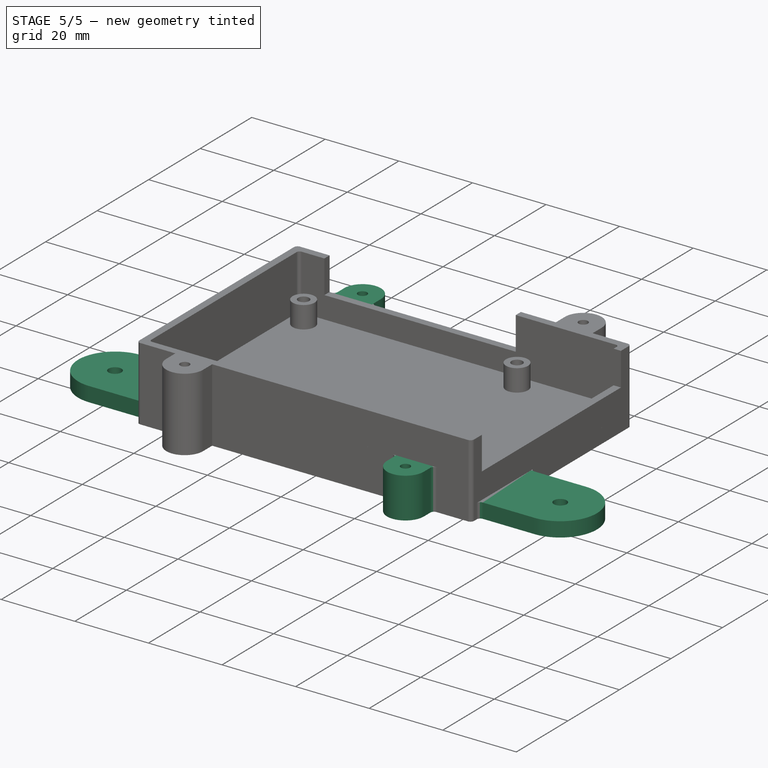
[diagram: stage 5 of 5 — iso view after this stage's code; geometry added in this stage tinted green]
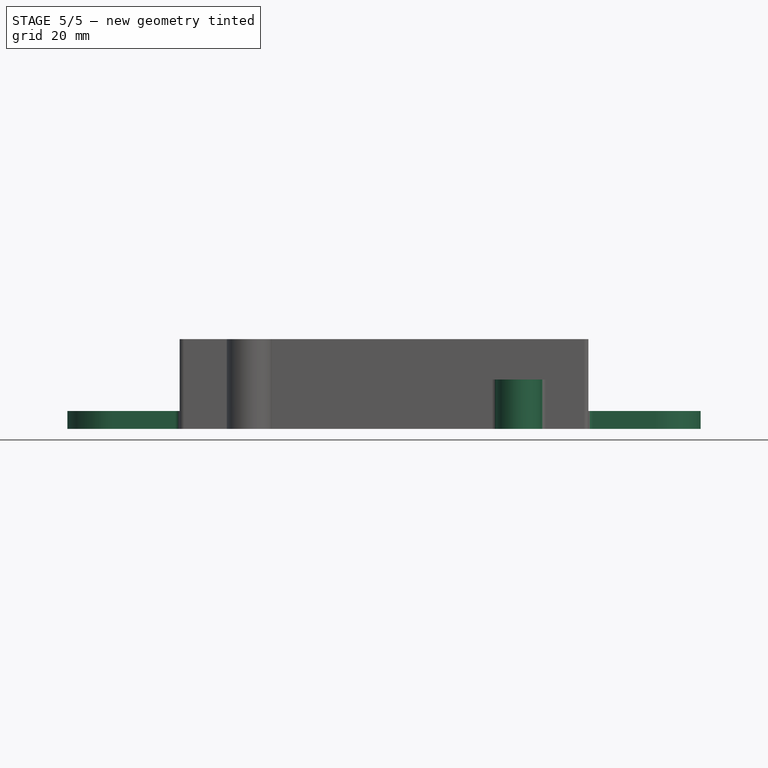
[diagram: stage 5 of 5 — front view after this stage's code; geometry added in this stage tinted green]
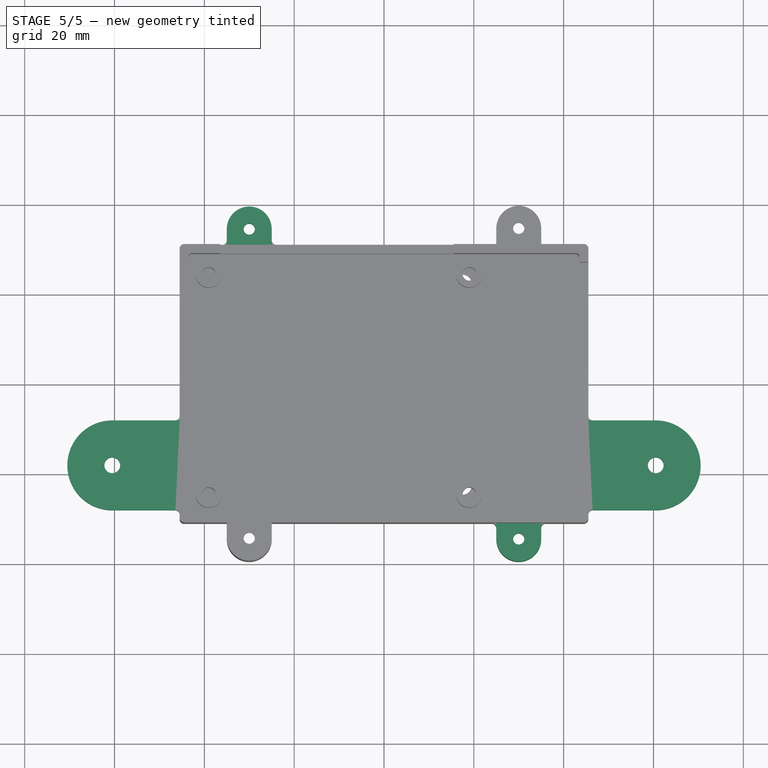
[diagram: stage 5 of 5 — top view after this stage's code; geometry added in this stage tinted green]
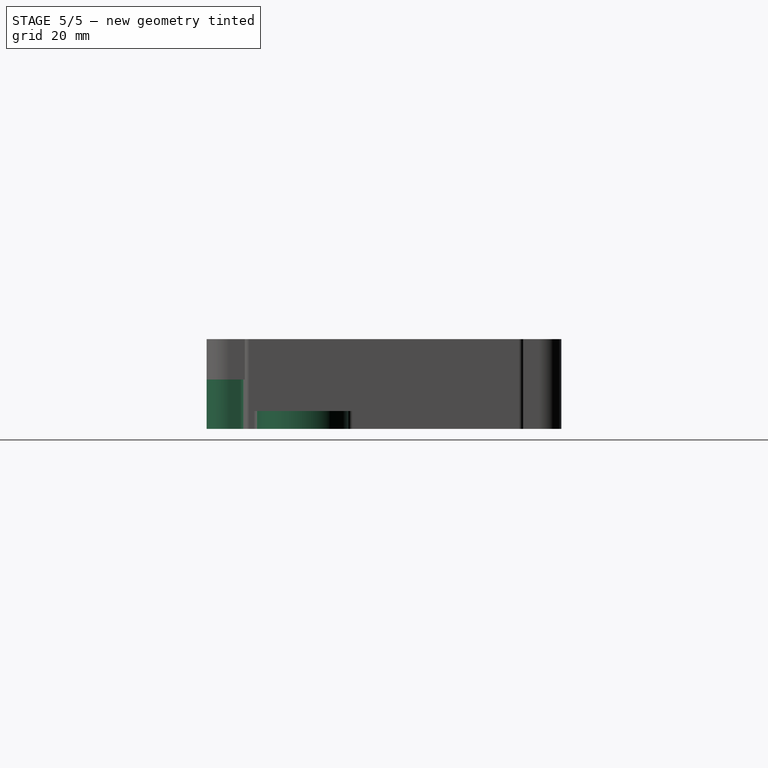
[diagram: stage 5 of 5 — right view after this stage's code; geometry added in this stage tinted green]
FEATURE [Sketcher::SketchObject] Sketch006
  ExternalGeometry = -> [Fillet002]
  MapMode = 5
  Placement = pos=(0,0,0) rot=(1,0,0;3.14159rad)
  Support = -> [Fillet002]
  sketch-geometry (5):
    g0: LineSegment StartX=-45.5 StartY=28 StartZ=0 EndX=-60.5 EndY=28 EndZ=0
    g1: LineSegment StartX=-45.5 StartY=8 StartZ=0 EndX=-60.5 EndY=8 EndZ=0
    g2: LineSegment StartX=-45.5 StartY=28 StartZ=0 EndX=-45.5 EndY=8 EndZ=0
    g3: ArcOfCircle CenterX=-60.5 CenterY=18 CenterZ=0 NormalX=0 NormalY=0 NormalZ=1 AngleXU=0 Radius=10 StartAngle=1.5708 EndAngle=4.71239
    g4: Circle CenterX=-60.5 CenterY=18 CenterZ=0 NormalX=0 NormalY=0 NormalZ=1 AngleXU=0 Radius=1.75
  constraints (14):
    c: PointOnObject(g0,g-3)
    c: Horizontal(g0)
    c: PointOnObject(g1,g-3)
    c: Horizontal(g1)
    c: Vertical(g1,g0)
    c: Coincident(g2,g0)
    c: Coincident(g2,g1)
    c: Distance(g2) = 20
    c: Distance(g-3,g0) = 2
    c: Coincident(g3,g1)
    c: Tangent(g3,g0) = -1.5708
    c: Distance(g0) = 15
    c: Coincident(g4,g3)
    c: Diameter(g4) = 3.5
FEATURE [PartDesign::Pad] Pad002
  BaseFeature = -> Fillet002
  Direction = (1,1,1)
  Length = 4
  Length2 = 100
  Profile = -> Sketch006
  Reversed = true
  Type = 0
FEATURE [PartDesign::Mirrored] Mirrored
  BaseFeature = -> Pad002
  MirrorPlane = -> Sketch006 [V_Axis]
  Originals = -> [Pad002]
FEATURE [PartDesign::Fillet] Fillet003
  Base = -> Mirrored [Edge55,Edge53,Edge69,Edge71]
  BaseFeature = -> Mirrored
  Radius = 1
  SupportTransform = false
FEATURE [Sketcher::SketchObject] Sketch007
  ExternalGeometry = -> [Fillet003]
  MapMode = 5
  Placement = pos=(0,0,0) rot=(1,0,0;3.14159rad)
  Support = -> [Fillet003]
  expr: Constraints[24] = Constraints[11]
  expr: Constraints[25] = Constraints[10]
  expr: Constraints[26] = Constraints[9]
  expr: Constraints[27] = Constraints[13]
  sketch-geometry (10):
    g0: LineSegment StartX=25 StartY=31 StartZ=0 EndX=25 EndY=34.5 EndZ=0
    g1: LineSegment StartX=35 StartY=31 StartZ=0 EndX=35 EndY=34.5 EndZ=0
    g2: LineSegment StartX=25 StartY=31 StartZ=0 EndX=35 EndY=31 EndZ=0
    g3: ArcOfCircle CenterX=30 CenterY=34.5 CenterZ=0 NormalX=0 NormalY=0 NormalZ=1 AngleXU=0 Radius=5 StartAngle=0 EndAngle=3.14159
    g4: Circle CenterX=30 CenterY=34.5 CenterZ=0 NormalX=0 NormalY=0 NormalZ=1 AngleXU=0 Radius=1.25
    g5: LineSegment StartX=-35 StartY=-31 StartZ=0 EndX=-35 EndY=-34.5 EndZ=0
    g6: LineSegment StartX=-25 StartY=-31 StartZ=0 EndX=-25 EndY=-34.5 EndZ=0
    g7: ArcOfCircle CenterX=-30 CenterY=-34.5 CenterZ=0 NormalX=0 NormalY=0 NormalZ=1 AngleXU=0 Radius=5 StartAngle=3.14159 EndAngle=6.28319
    g8: LineSegment StartX=-35 StartY=-31 StartZ=0 EndX=-25 EndY=-31 EndZ=0
    g9: Circle CenterX=-30 CenterY=-34.5 CenterZ=0 NormalX=0 NormalY=0 NormalZ=1 AngleXU=0 Radius=1.25
  constraints (28):
    c: PointOnObject(g0,g-3)
    c: Vertical(g0)
    c: Vertical(g1)
    c: Coincident(g2,g0)
    c: Coincident(g2,g1)
    c: Horizontal(g0,g1)
    c: Coincident(g3,g1)
    c: Tangent(g3,g0) = 1.5708
    c: Coincident(g4,g3)
    c: Diameter(g4) = 2.5
    c: Radius(g3) = 5
    c: Distance(g3,g2) = 3.5
    c: PointOnObject(g1,g-3)
    c: DistanceX(g-2,g3) = 30
    c: PointOnObject(g5,g-5)
    c: Vertical(g5)
    c: PointOnObject(g6,g-5)
    c: Vertical(g6)
    c: Coincident(g7,g5)
    c: Coincident(g8,g5)
    c: Coincident(g8,g6)
    c: Tangent(g7,g6) = 1.5708
    c: Coincident(g9,g7)
    c: Horizontal(g6,g5)
    c: Distance(g7,g8) = 3.5
    c: Radius(g7) = 5
    c: Diameter(g9) = 2.5
    c: DistanceX(g7,g-1) = 30
FEATURE [PartDesign::Pad] Pad003
  BaseFeature = -> Fillet003
  Direction = (1,1,1)
  Length = 10
  Length2 = 100
  Profile = -> Sketch007
  Reversed = true
  Type = 3
  UpToFace = -> Fillet003 [Face6]
FEATURE [PartDesign::Fillet] Fillet004
  Base = -> Pad003 [Edge106,Edge112,Edge126,Edge132]
  BaseFeature = -> Pad003
  Radius = 1
  SupportTransform = false
FEATURE [Sketcher::SketchObject] Sketch008
  ExternalGeometry = -> [Fillet004]
  MapMode = 5
  Placement = pos=(0,0,0) rot=(1,0,0;3.14159rad)
  Support = -> [Fillet004]
  expr: Constraints[39] = Constraints[19]
  sketch-geometry (14):
    g0: LineSegment StartX=-28.7876 StartY=-32.4 StartZ=0 EndX=-31.2124 EndY=-32.4 EndZ=0
    g1: LineSegment StartX=-31.2124 StartY=-32.4 StartZ=0 EndX=-32.4249 EndY=-34.5 EndZ=0
    g2: LineSegment StartX=-32.4249 StartY=-34.5 StartZ=0 EndX=-31.2124 EndY=-36.6 EndZ=0
    g3: LineSegment StartX=-31.2124 StartY=-36.6 StartZ=0 EndX=-28.7876 EndY=-36.6 EndZ=0
    g4: LineSegment StartX=-28.7876 StartY=-36.6 StartZ=0 EndX=-27.5751 EndY=-34.5 EndZ=0
    g5: LineSegment StartX=-27.5751 StartY=-34.5 StartZ=0 EndX=-28.7876 EndY=-32.4 EndZ=0
    g6: Circle [constr] CenterX=-30 CenterY=-34.5 CenterZ=0 NormalX=0 NormalY=0 NormalZ=1 AngleXU=0 Radius=2.42487
    g7: LineSegment StartX=31.2124 StartY=36.6 StartZ=0 EndX=28.7876 EndY=36.6 EndZ=0
    g8: LineSegment StartX=28.7876 StartY=36.6 StartZ=0 EndX=27.5751 EndY=34.5 EndZ=0
    g9: LineSegment StartX=27.5751 StartY=34.5 StartZ=0 EndX=28.7876 EndY=32.4 EndZ=0
    g10: LineSegment StartX=28.7876 StartY=32.4 StartZ=0 EndX=31.2124 EndY=32.4 EndZ=0
    g11: LineSegment StartX=31.2124 StartY=32.4 StartZ=0 EndX=32.4249 EndY=34.5 EndZ=0
    g12: LineSegment StartX=32.4249 StartY=34.5 StartZ=0 EndX=31.2124 EndY=36.6 EndZ=0
    g13: Circle [constr] CenterX=30 CenterY=34.5 CenterZ=0 NormalX=0 NormalY=0 NormalZ=1 AngleXU=0 Radius=2.42487
  constraints (32):
    c: Coincident(g0,g1)
    c: Coincident(g1,g2)
    c: Coincident(g2,g3)
    c: Coincident(g3,g4)
    c: Coincident(g4,g5)
    c: Coincident(g5,g0)
    c: Equal(g0, g1-g5) x5
    c: PointOnObject(g0,g6)
    c: PointOnObject(g1,g6)
    c: PointOnObject(g2,g6)
    c: PointOnObject(g3,g6)
    c: PointOnObject(g4,g6)
    c: PointOnObject(g5,g6)
    c: Coincident(g6,g-3)
    c: Parallel(g0,g-5)
    c: Distance(g1,g5) = 4.2
    c: Coincident(g7,g8)
    c: Coincident(g8,g9)
    c: Coincident(g9,g10)
    c: Coincident(g10,g11)
    c: Coincident(g11,g12)
    c: Coincident(g12,g7)
    c: Equal(g7, g8-g12) x5
    c: PointOnObject(g7,g13)
    c: PointOnObject(g8,g13)
    c: PointOnObject(g9,g13)
    c: PointOnObject(g10,g13)
    c: PointOnObject(g11,g13)
    c: PointOnObject(g12,g13)
    c: Coincident(g13,g-4)
    c: Parallel(g10,g0)
    c: Distance(g9,g12) = 4.2
FEATURE [PartDesign::Pocket] Pocket004
  BaseFeature = -> Fillet004
  Length = 4
  Length2 = 100
  Profile = -> Sketch008
  Type = 0
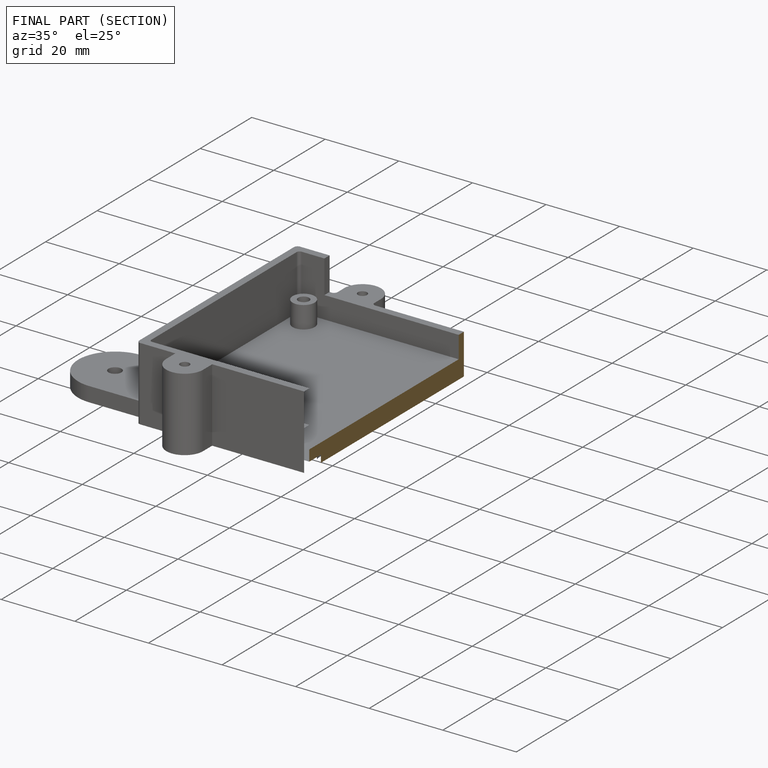
[diagram: finished part — half-section view (interior)]
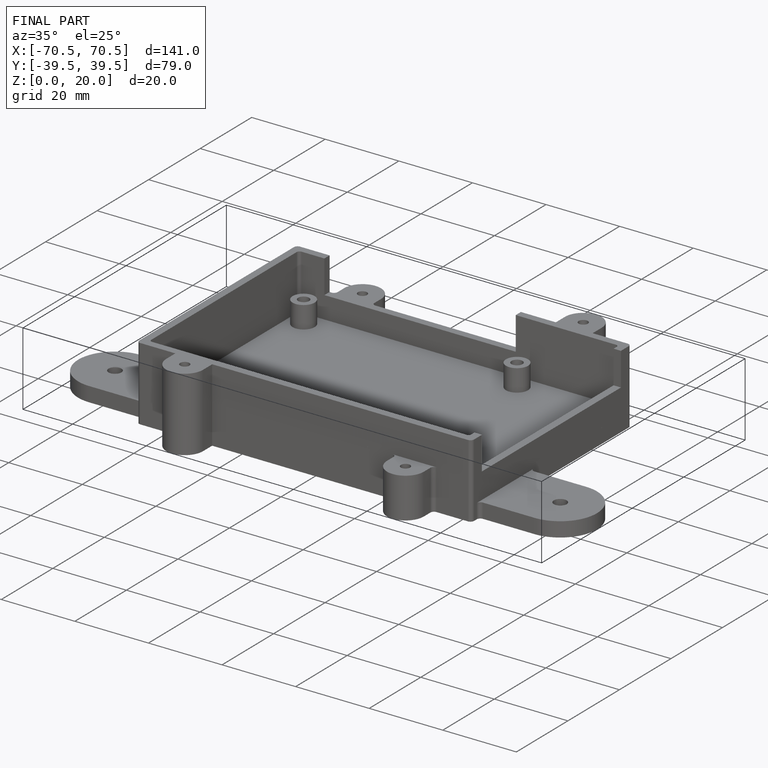
[diagram: finished part — iso view with bounding-box wireframe]
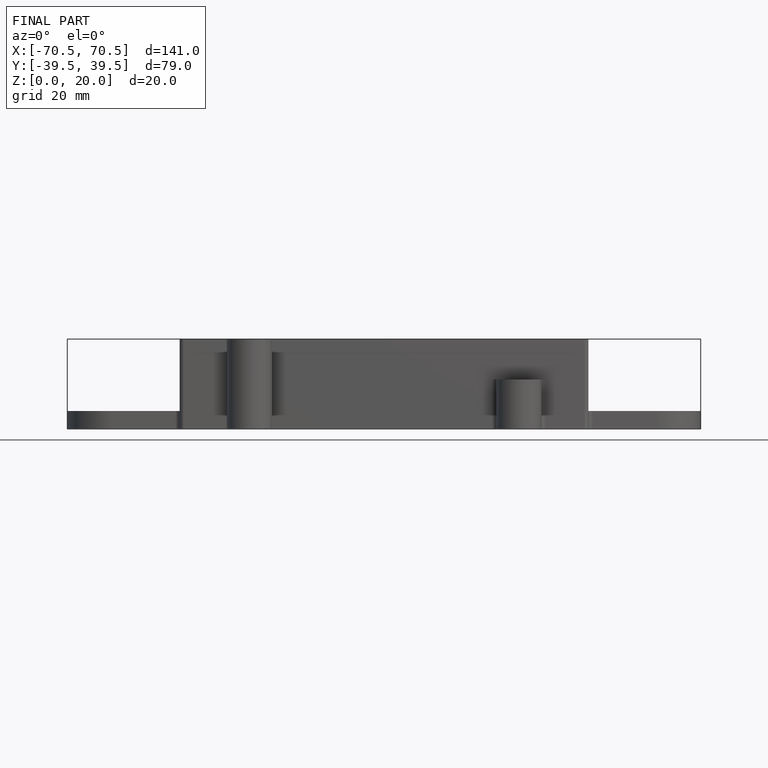
[diagram: finished part — front view with bounding-box wireframe]
